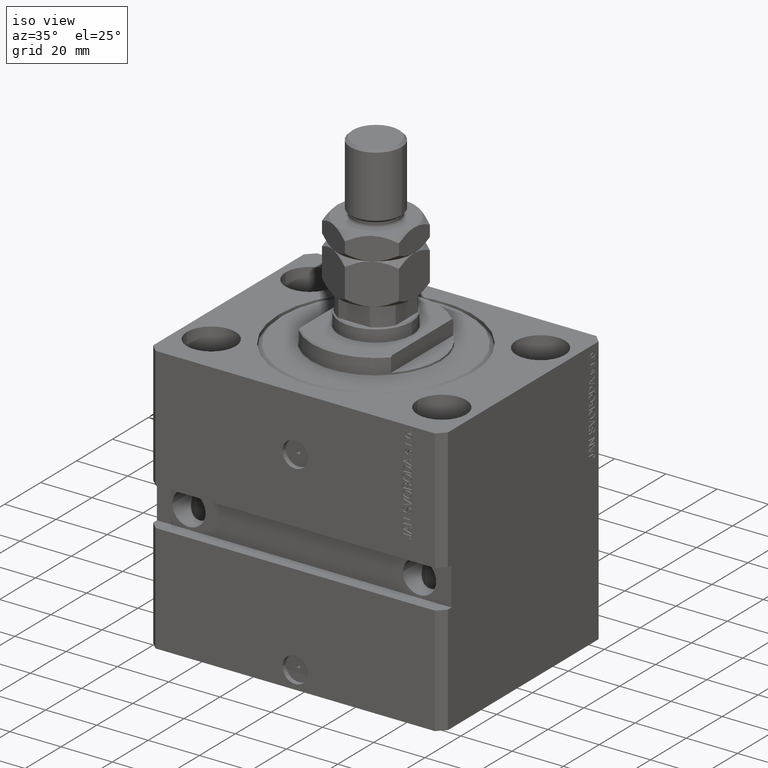
[diagram: clean part render]
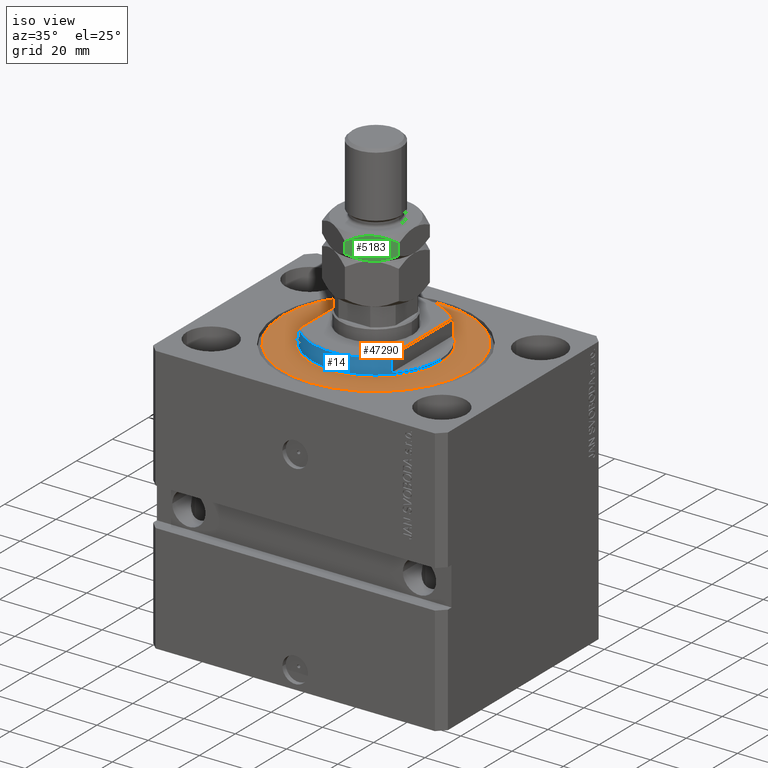
[diagram: same view with three faces highlighted in distinct colors, each labeled with its STEP entity id]
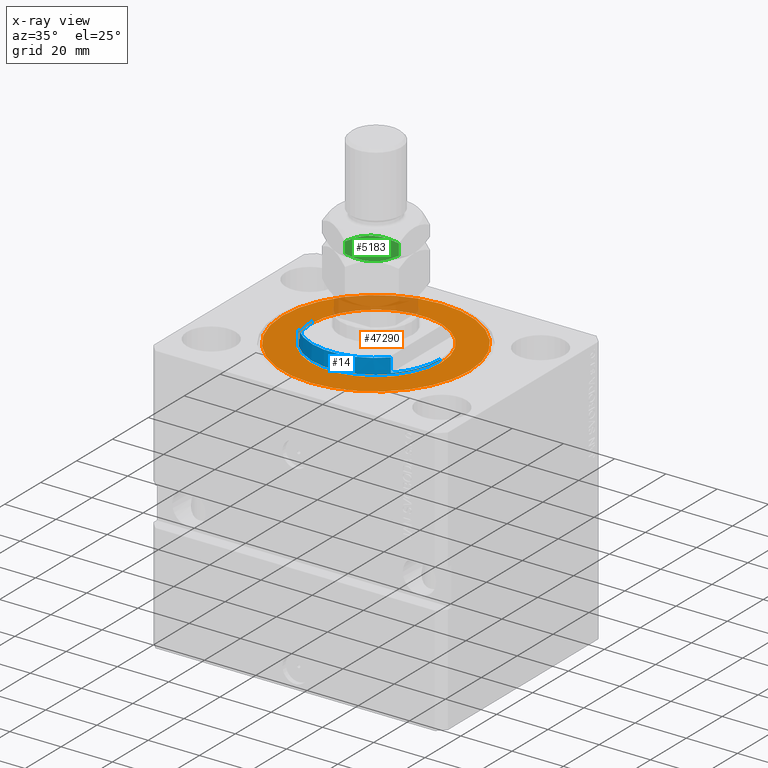
[diagram: x-ray of the same camera — body ghosted, the three highlighted faces saturated]
A machine part, iso view with three faces highlighted in distinct colors.
The next image is the same camera in x-ray (body ghosted, the three faces saturated) — at least one of them is partly hidden behind the body in this view.
Their STEP definitions:

[orange] entity #47290 — the highlighted planar face has unit normal (0, 0, -1).
#3509 = EDGE_LOOP ( 'NONE', ( #22406, #49893 ) ) ;
#3539 = EDGE_CURVE ( 'NONE', #49983, #15535, #27665, .T. ) ;
#3832 = DIRECTION ( 'NONE',  ( 0.000000000000000000, 0.000000000000000000, 1.000000000000000000 ) ) ;
#3974 = DIRECTION ( 'NONE',  ( 1.000000000000000000, 0.000000000000000000, 0.000000000000000000 ) ) ;
#5387 = AXIS2_PLACEMENT_3D ( 'NONE', #23328, #18732, #23570 ) ;
#6287 = PLANE ( 'NONE',  #19040 ) ;
#6704 = EDGE_CURVE ( 'NONE', #43230, #27597, #46464, .T. ) ;
#7521 = CARTESIAN_POINT ( 'NONE',  ( 0.000000000000000000, 0.000000000000000000, 0.000000000000000000 ) ) ;
#7774 = DIRECTION ( 'NONE',  ( 0.000000000000000000, 0.000000000000000000, 1.000000000000000000 ) ) ;
#8470 = CARTESIAN_POINT ( 'NONE',  ( 0.000000000000000000, 0.000000000000000000, 0.000000000000000000 ) ) ;
#8626 = CIRCLE ( 'NONE', #5387, 36.50000000000000000 ) ;
#9766 = AXIS2_PLACEMENT_3D ( 'NONE', #37890, #3832, #38144 ) ;
#14684 = DIRECTION ( 'NONE',  ( 1.000000000000000000, 0.000000000000000000, -0.000000000000000000 ) ) ;
#15535 = VERTEX_POINT ( 'NONE', #45842 ) ;
#16597 = EDGE_CURVE ( 'NONE', #27597, #43230, #8626, .T. ) ;
#18732 = DIRECTION ( 'NONE',  ( -0.000000000000000000, -0.000000000000000000, -1.000000000000000000 ) ) ;
#19040 = AXIS2_PLACEMENT_3D ( 'NONE', #37585, #21578, #14684 ) ;
#19125 = CARTESIAN_POINT ( 'NONE',  ( 25.50000000000000355, 0.000000000000000000, 2.168404344971008868E-16 ) ) ;
#20993 = EDGE_LOOP ( 'NONE', ( #38734, #36959 ) ) ;
#21578 = DIRECTION ( 'NONE',  ( 0.000000000000000000, 0.000000000000000000, 1.000000000000000000 ) ) ;
#22082 = FACE_OUTER_BOUND ( 'NONE', #20993, .T. ) ;
#22406 = ORIENTED_EDGE ( 'NONE', *, *, #3539, .T. ) ;
#23328 = CARTESIAN_POINT ( 'NONE',  ( 0.000000000000000000, 0.000000000000000000, 0.000000000000000000 ) ) ;
#23570 = DIRECTION ( 'NONE',  ( 1.000000000000000000, 0.000000000000000000, 0.000000000000000000 ) ) ;
#24842 = EDGE_CURVE ( 'NONE', #15535, #49983, #31605, .T. ) ;
#25340 = CARTESIAN_POINT ( 'NONE',  ( 36.50000000000000000, 0.000000000000000000, 0.000000000000000000 ) ) ;
#27597 = VERTEX_POINT ( 'NONE', #25340 ) ;
#27665 = CIRCLE ( 'NONE', #9766, 25.50000000000000355 ) ;
#31396 = DIRECTION ( 'NONE',  ( 1.000000000000000000, 0.000000000000000000, 0.000000000000000000 ) ) ;
#31605 = CIRCLE ( 'NONE', #32369, 25.50000000000000355 ) ;
#32369 = AXIS2_PLACEMENT_3D ( 'NONE', #7521, #7774, #3974 ) ;
#35200 = DIRECTION ( 'NONE',  ( -0.000000000000000000, -0.000000000000000000, -1.000000000000000000 ) ) ;
#36959 = ORIENTED_EDGE ( 'NONE', *, *, #6704, .T. ) ;
#37585 = CARTESIAN_POINT ( 'NONE',  ( 0.000000000000000000, 0.000000000000000000, 0.000000000000000000 ) ) ;
#37890 = CARTESIAN_POINT ( 'NONE',  ( 0.000000000000000000, 0.000000000000000000, 0.000000000000000000 ) ) ;
#38144 = DIRECTION ( 'NONE',  ( 1.000000000000000000, 0.000000000000000000, 0.000000000000000000 ) ) ;
#38734 = ORIENTED_EDGE ( 'NONE', *, *, #16597, .T. ) ;
#43230 = VERTEX_POINT ( 'NONE', #47875 ) ;
#45842 = CARTESIAN_POINT ( 'NONE',  ( -25.50000000000000355, 3.122849337825751011E-15, 2.168404344971008868E-16 ) ) ;
#46464 = CIRCLE ( 'NONE', #47238, 36.50000000000000000 ) ;
#47238 = AXIS2_PLACEMENT_3D ( 'NONE', #8470, #35200, #31396 ) ;
#47290 = ADVANCED_FACE ( 'NONE', ( #49486, #22082 ), #6287, .F. ) ;
#47875 = CARTESIAN_POINT ( 'NONE',  ( -36.50000000000000000, 4.561809326823889791E-15, 0.000000000000000000 ) ) ;
#49486 = FACE_BOUND ( 'NONE', #3509, .T. ) ;
#49893 = ORIENTED_EDGE ( 'NONE', *, *, #24842, .T. ) ;
#49983 = VERTEX_POINT ( 'NONE', #19125 ) ;

[blue] entity #14 — the highlighted cylindrical surface (partial cylindrical patch) has radius 25 mm, axis along (0, 0, -1).
#14 = ADVANCED_FACE ( 'NONE', ( #47645 ), #13078, .T. ) ;
#34 = CARTESIAN_POINT ( 'NONE',  ( 18.00000000000000000, -17.34935157289747920, -6.499999999999971578 ) ) ;
#2362 = VERTEX_POINT ( 'NONE', #13017 ) ;
#2900 = EDGE_CURVE ( 'NONE', #27055, #26417, #23624, .T. ) ;
#2970 = DIRECTION ( 'NONE',  ( 1.000000000000000000, 0.000000000000000000, 0.000000000000000000 ) ) ;
#3339 = CIRCLE ( 'NONE', #7386, 25.00000000000000000 ) ;
#5461 = DIRECTION ( 'NONE',  ( 0.000000000000000000, 0.000000000000000000, 1.000000000000000000 ) ) ;
#5603 = ORIENTED_EDGE ( 'NONE', *, *, #44000, .T. ) ;
#7219 = CARTESIAN_POINT ( 'NONE',  ( 25.00000000000000000, 0.000000000000000000, -1.000000000000000000 ) ) ;
#7276 = DIRECTION ( 'NONE',  ( -0.000000000000000000, -0.000000000000000000, 1.000000000000000000 ) ) ;
#7386 = AXIS2_PLACEMENT_3D ( 'NONE', #44071, #32921, #13576 ) ;
#7404 = CARTESIAN_POINT ( 'NONE',  ( -25.00000000000000000, 3.061616997868383043E-15, -0.4999999999999995559 ) ) ;
#8194 = VECTOR ( 'NONE', #7276, 1000.000000000000000 ) ;
#8290 = CARTESIAN_POINT ( 'NONE',  ( -18.00000000000000000, -17.34935157289747920, -6.499999999999969802 ) ) ;
#8321 = EDGE_CURVE ( 'NONE', #17719, #26599, #3339, .T. ) ;
#8938 = CARTESIAN_POINT ( 'NONE',  ( -25.00000000000000000, 3.061616997868383043E-15, -7.000000000000000000 ) ) ;
#9078 = VECTOR ( 'NONE', #18046, 1000.000000000000000 ) ;
#9615 = EDGE_CURVE ( 'NONE', #49548, #27055, #10659, .T. ) ;
#9895 = LINE ( 'NONE', #21367, #21371 ) ;
#10659 = LINE ( 'NONE', #25430, #9078 ) ;
#10848 = DIRECTION ( 'NONE',  ( -0.000000000000000000, -0.000000000000000000, -1.000000000000000000 ) ) ;
#11050 = ORIENTED_EDGE ( 'NONE', *, *, #49173, .F. ) ;
#13017 = CARTESIAN_POINT ( 'NONE',  ( -25.00000000000000000, 3.061616997868383043E-15, -1.000000000000000000 ) ) ;
#13078 = CYLINDRICAL_SURFACE ( 'NONE', #44561, 25.00000000000000000 ) ;
#13576 = DIRECTION ( 'NONE',  ( -1.000000000000000000, 0.000000000000000000, 0.000000000000000000 ) ) ;
#13594 = CARTESIAN_POINT ( 'NONE',  ( -18.00000000000000000, -17.34935157289747920, -1.000000000000000000 ) ) ;
#13823 = CARTESIAN_POINT ( 'NONE',  ( 25.00000000000000000, 0.000000000000000000, -0.4999999999999995559 ) ) ;
#14926 = CARTESIAN_POINT ( 'NONE',  ( 0.000000000000000000, 0.000000000000000000, -0.4999999999999995559 ) ) ;
#16658 = DIRECTION ( 'NONE',  ( -0.000000000000000000, -0.000000000000000000, 1.000000000000000000 ) ) ;
#16913 = DIRECTION ( 'NONE',  ( -1.000000000000000000, 0.000000000000000000, 0.000000000000000000 ) ) ;
#17017 = CARTESIAN_POINT ( 'NONE',  ( 18.00000000000000000, -17.34935157289747920, -1.000000000000000000 ) ) ;
#17377 = AXIS2_PLACEMENT_3D ( 'NONE', #18341, #46034, #46282 ) ;
#17719 = VERTEX_POINT ( 'NONE', #7219 ) ;
#18046 = DIRECTION ( 'NONE',  ( 0.000000000000000000, 0.000000000000000000, -1.000000000000000000 ) ) ;
#18098 = AXIS2_PLACEMENT_3D ( 'NONE', #14926, #10848, #2970 ) ;
#18299 = DIRECTION ( 'NONE',  ( 0.000000000000000000, 0.000000000000000000, -1.000000000000000000 ) ) ;
#18341 = CARTESIAN_POINT ( 'NONE',  ( 0.000000000000000000, 0.000000000000000000, -1.000000000000000000 ) ) ;
#20076 = ORIENTED_EDGE ( 'NONE', *, *, #33025, .T. ) ;
#21367 = CARTESIAN_POINT ( 'NONE',  ( 18.00000000000000000, -17.34935157289747920, -7.000000000000000000 ) ) ;
#21371 = VECTOR ( 'NONE', #18299, 1000.000000000000000 ) ;
#23338 = LINE ( 'NONE', #23581, #8194 ) ;
#23581 = CARTESIAN_POINT ( 'NONE',  ( 25.00000000000000000, 0.000000000000000000, -7.000000000000000000 ) ) ;
#23624 = CIRCLE ( 'NONE', #46305, 25.00000000000000000 ) ;
#23910 = VECTOR ( 'NONE', #43288, 1000.000000000000000 ) ;
#24005 = LINE ( 'NONE', #8938, #23910 ) ;
#24150 = ORIENTED_EDGE ( 'NONE', *, *, #9615, .T. ) ;
#25059 = ORIENTED_EDGE ( 'NONE', *, *, #40207, .F. ) ;
#25430 = CARTESIAN_POINT ( 'NONE',  ( -18.00000000000000000, -17.34935157289747920, -7.000000000000000000 ) ) ;
#26417 = VERTEX_POINT ( 'NONE', #34 ) ;
#26599 = VERTEX_POINT ( 'NONE', #17017 ) ;
#27055 = VERTEX_POINT ( 'NONE', #8290 ) ;
#27060 = CIRCLE ( 'NONE', #18098, 25.00000000000000000 ) ;
#28367 = CARTESIAN_POINT ( 'NONE',  ( 0.000000000000000000, 0.000000000000000000, -6.499999999999971578 ) ) ;
#28949 = ORIENTED_EDGE ( 'NONE', *, *, #47524, .F. ) ;
#32839 = VERTEX_POINT ( 'NONE', #7404 ) ;
#32921 = DIRECTION ( 'NONE',  ( 0.000000000000000000, 0.000000000000000000, -1.000000000000000000 ) ) ;
#33025 = EDGE_CURVE ( 'NONE', #17719, #35292, #23338, .T. ) ;
#35292 = VERTEX_POINT ( 'NONE', #13823 ) ;
#35732 = ORIENTED_EDGE ( 'NONE', *, *, #2900, .T. ) ;
#35863 = EDGE_LOOP ( 'NONE', ( #25059, #28949, #24150, #35732, #11050, #39805, #20076, #5603 ) ) ;
#36735 = DIRECTION ( 'NONE',  ( 1.000000000000000000, 0.000000000000000000, 0.000000000000000000 ) ) ;
#36866 = CIRCLE ( 'NONE', #17377, 25.00000000000000000 ) ;
#39805 = ORIENTED_EDGE ( 'NONE', *, *, #8321, .F. ) ;
#40207 = EDGE_CURVE ( 'NONE', #2362, #32839, #24005, .T. ) ;
#43288 = DIRECTION ( 'NONE',  ( -0.000000000000000000, -0.000000000000000000, 1.000000000000000000 ) ) ;
#44000 = EDGE_CURVE ( 'NONE', #35292, #32839, #27060, .T. ) ;
#44071 = CARTESIAN_POINT ( 'NONE',  ( 0.000000000000000000, 0.000000000000000000, -1.000000000000000000 ) ) ;
#44083 = CARTESIAN_POINT ( 'NONE',  ( 0.000000000000000000, 0.000000000000000000, -7.000000000000000000 ) ) ;
#44561 = AXIS2_PLACEMENT_3D ( 'NONE', #44083, #16658, #36735 ) ;
#46034 = DIRECTION ( 'NONE',  ( 0.000000000000000000, 0.000000000000000000, -1.000000000000000000 ) ) ;
#46282 = DIRECTION ( 'NONE',  ( -1.000000000000000000, 0.000000000000000000, 0.000000000000000000 ) ) ;
#46305 = AXIS2_PLACEMENT_3D ( 'NONE', #28367, #5461, #16913 ) ;
#47524 = EDGE_CURVE ( 'NONE', #49548, #2362, #36866, .T. ) ;
#47645 = FACE_OUTER_BOUND ( 'NONE', #35863, .T. ) ;
#49173 = EDGE_CURVE ( 'NONE', #26599, #26417, #9895, .T. ) ;
#49548 = VERTEX_POINT ( 'NONE', #13594 ) ;

[green] entity #5183 — the highlighted planar face has unit normal (-0.5, 0.866, 0).
#372 = CARTESIAN_POINT ( 'NONE',  ( 7.499999999999993783, -12.99038105676658006, 16.00000000000000000 ) ) ;
#458 = CARTESIAN_POINT ( 'NONE',  ( 13.82525345580783771, -9.338494271363309451, 23.35773215783022039 ) ) ;
#1823 = CARTESIAN_POINT ( 'NONE',  ( 12.62116548881249400, -10.03367478323606221, 17.06448606774401000 ) ) ;
#1871 = ORIENTED_EDGE ( 'NONE', *, *, #34493, .F. ) ;
#1875 = CARTESIAN_POINT ( 'NONE',  ( 8.804550678576914535, -12.23719837131868715, 25.00000000000000000 ) ) ;
#2074 = CARTESIAN_POINT ( 'NONE',  ( 8.823580389329300999, -12.22621156269319798, 16.05953537397470043 ) ) ;
#2961 = B_SPLINE_CURVE_WITH_KNOTS ( 'NONE', 3,
 ( #19785, #1875, #8070, #5927, #458, #12134 ),
 .UNSPECIFIED., .F., .F.,
 ( 4, 2, 4 ),
 ( 0.008977392552884448998, 0.01343452311421656706, 0.01789165367554868338 ),
 .UNSPECIFIED. ) ;
#3751 = CARTESIAN_POINT ( 'NONE',  ( 7.500000000000001776, -12.99038105676657473, 25.00000000000000000 ) ) ;
#4238 = CARTESIAN_POINT ( 'NONE',  ( 4.881674457977378978, -14.50207201327941142, 24.71619733805371055 ) ) ;
#4648 = CARTESIAN_POINT ( 'NONE',  ( 3.096598485618407139E-15, -17.32050807568877104, 22.67949192431123606 ) ) ;
#5183 = ADVANCED_FACE ( 'NONE', ( #13635 ), #43876, .F. ) ;
#5253 = CARTESIAN_POINT ( 'NONE',  ( 2.552051520948485970E-15, -17.32050807568877104, 25.00000000000000000 ) ) ;
#5589 = VERTEX_POINT ( 'NONE', #17343 ) ;
#5927 = CARTESIAN_POINT ( 'NONE',  ( 12.61607045183964715, -10.03661640420386369, 23.93952096862911461 ) ) ;
#6005 = DIRECTION ( 'NONE',  ( -0.8660254037844384856, -0.5000000000000001110, 0.000000000000000000 ) ) ;
#7626 = EDGE_CURVE ( 'NONE', #44936, #37646, #27822, .T. ) ;
#8070 = CARTESIAN_POINT ( 'NONE',  ( 10.08691881950259273, -11.49682277995504798, 24.76967007806078414 ) ) ;
#9057 = DIRECTION ( 'NONE',  ( -0.5000000000000002220, 0.8660254037844385966, 0.000000000000000000 ) ) ;
#9589 = ORIENTED_EDGE ( 'NONE', *, *, #7626, .T. ) ;
#10190 = CARTESIAN_POINT ( 'NONE',  ( 15.00000000000000000, -8.660254037844381969, 18.32050807568876394 ) ) ;
#10867 = EDGE_LOOP ( 'NONE', ( #1871, #48171, #46687, #46375, #9589, #24995 ) ) ;
#12134 = CARTESIAN_POINT ( 'NONE',  ( 14.99999999999999822, -8.660254037844383745, 22.67949192431123961 ) ) ;
#12631 = CARTESIAN_POINT ( 'NONE',  ( 6.195449321423082800, -13.74356374221446586, 16.00000000000000355 ) ) ;
#13079 = VERTEX_POINT ( 'NONE', #27792 ) ;
#13635 = FACE_OUTER_BOUND ( 'NONE', #10867, .T. ) ;
#14691 = VECTOR ( 'NONE', #27331, 1000.000000000000000 ) ;
#15750 = DIRECTION ( 'NONE',  ( -0.000000000000000000, -0.000000000000000000, -1.000000000000000000 ) ) ;
#15985 = LINE ( 'NONE', #27679, #35914 ) ;
#16296 = B_SPLINE_CURVE_WITH_KNOTS ( 'NONE', 3,
 ( #19499, #34767, #23580, #31221, #4238, #43355, #43106, #3751 ),
 .UNSPECIFIED., .F., .F.,
 ( 4, 2, 2, 4 ),
 ( 2.544309033651680028E-07, 0.004488823491893906975, 0.006733108022389177987, 0.008977392552884448998 ),
 .UNSPECIFIED. ) ;
#17336 = CARTESIAN_POINT ( 'NONE',  ( 10.75222765045650775, -11.11270654730956409, 16.44757140851302779 ) ) ;
#17343 = CARTESIAN_POINT ( 'NONE',  ( 14.99999999999999822, -8.660254037844383745, 22.67949192431123961 ) ) ;
#19499 = CARTESIAN_POINT ( 'NONE',  ( 3.096598485618407139E-15, -17.32050807568877104, 22.67949192431123606 ) ) ;
#19785 = CARTESIAN_POINT ( 'NONE',  ( 7.500000000000001776, -12.99038105676657473, 25.00000000000000000 ) ) ;
#22420 = CARTESIAN_POINT ( 'NONE',  ( 13.82389157469336283, -9.339280553791359907, 17.64148155974178778 ) ) ;
#22654 = EDGE_CURVE ( 'NONE', #44936, #48975, #16296, .T. ) ;
#22865 = AXIS2_PLACEMENT_3D ( 'NONE', #5253, #9057, #6005 ) ;
#23200 = CARTESIAN_POINT ( 'NONE',  ( 7.499999999999993783, -12.99038105676658006, 16.00000000000000000 ) ) ;
#23580 = CARTESIAN_POINT ( 'NONE',  ( 2.378834511187506440, -15.94708733029709080, 23.93551393225599000 ) ) ;
#24113 = CARTESIAN_POINT ( 'NONE',  ( 1.174746544192163400, -16.64226784216984001, 17.64226784216978317 ) ) ;
#24995 = ORIENTED_EDGE ( 'NONE', *, *, #42938, .F. ) ;
#27331 = DIRECTION ( 'NONE',  ( -0.000000000000000000, -0.000000000000000000, -1.000000000000000000 ) ) ;
#27679 = CARTESIAN_POINT ( 'NONE',  ( 14.99999999999999822, -8.660254037844381969, 25.00000000000000000 ) ) ;
#27792 = CARTESIAN_POINT ( 'NONE',  ( 15.00000000000000000, -8.660254037844381969, 18.32050807568876394 ) ) ;
#27822 = LINE ( 'NONE', #42572, #14691 ) ;
#29047 = CARTESIAN_POINT ( 'NONE',  ( 7.500000000000001776, -12.99038105676657473, 25.00000000000000000 ) ) ;
#31221 = CARTESIAN_POINT ( 'NONE',  ( 4.247772349543486925, -14.86805556622359070, 24.55242859148698642 ) ) ;
#32342 = B_SPLINE_CURVE_WITH_KNOTS ( 'NONE', 3,
 ( #43400, #12631, #35058, #50272, #24113, #34812 ),
 .UNSPECIFIED., .F., .F.,
 ( 4, 2, 4 ),
 ( 0.008977392552884455937, 0.01343452311421657053, 0.01789165367554868338 ),
 .UNSPECIFIED. ) ;
#33451 = CARTESIAN_POINT ( 'NONE',  ( 2.765920654496385348E-15, -17.32050807568877104, 18.32050807568876749 ) ) ;
#34493 = EDGE_CURVE ( 'NONE', #13079, #45704, #48113, .T. ) ;
#34767 = CARTESIAN_POINT ( 'NONE',  ( 1.176108425306644945, -16.64148155974179488, 23.35851844025819801 ) ) ;
#34812 = CARTESIAN_POINT ( 'NONE',  ( 2.765920654496385348E-15, -17.32050807568877104, 18.32050807568876749 ) ) ;
#35058 = CARTESIAN_POINT ( 'NONE',  ( 4.913081180497407274, -14.48393933357810681, 16.23032992193922297 ) ) ;
#35914 = VECTOR ( 'NONE', #15750, 1000.000000000000000 ) ;
#37646 = VERTEX_POINT ( 'NONE', #33451 ) ;
#38748 = EDGE_CURVE ( 'NONE', #48975, #5589, #2961, .T. ) ;
#40697 = CARTESIAN_POINT ( 'NONE',  ( 10.11832554202262280, -11.47869010025374514, 16.28380266194629655 ) ) ;
#42218 = CARTESIAN_POINT ( 'NONE',  ( 8.156876182308245404, -12.61113341608665550, 16.00000000000000355 ) ) ;
#42572 = CARTESIAN_POINT ( 'NONE',  ( 2.552051520948485970E-15, -17.32050807568877104, 25.00000000000000000 ) ) ;
#42938 = EDGE_CURVE ( 'NONE', #45704, #37646, #32342, .T. ) ;
#43106 = CARTESIAN_POINT ( 'NONE',  ( 6.843123817691750155, -13.36962869744649751, 25.00000000000000355 ) ) ;
#43355 = CARTESIAN_POINT ( 'NONE',  ( 6.176419610670697224, -13.75455055083995681, 24.94046462602529957 ) ) ;
#43400 = CARTESIAN_POINT ( 'NONE',  ( 7.499999999999993783, -12.99038105676658006, 16.00000000000000000 ) ) ;
#43786 = EDGE_CURVE ( 'NONE', #5589, #13079, #15985, .T. ) ;
#43876 = PLANE ( 'NONE',  #22865 ) ;
#44936 = VERTEX_POINT ( 'NONE', #4648 ) ;
#45704 = VERTEX_POINT ( 'NONE', #372 ) ;
#46375 = ORIENTED_EDGE ( 'NONE', *, *, #22654, .F. ) ;
#46687 = ORIENTED_EDGE ( 'NONE', *, *, #38748, .F. ) ;
#48113 = B_SPLINE_CURVE_WITH_KNOTS ( 'NONE', 3,
 ( #10190, #22420, #1823, #17336, #40697, #2074, #42218, #23200 ),
 .UNSPECIFIED., .F., .F.,
 ( 4, 2, 2, 4 ),
 ( 2.544309033627217716E-07, 0.004488823491893913047, 0.006733108022389184058, 0.008977392552884455937 ),
 .UNSPECIFIED. ) ;
#48171 = ORIENTED_EDGE ( 'NONE', *, *, #43786, .F. ) ;
#48975 = VERTEX_POINT ( 'NONE', #29047 ) ;
#50272 = CARTESIAN_POINT ( 'NONE',  ( 2.383929548160350187, -15.94414570932928932, 17.06047903137087829 ) ) ;